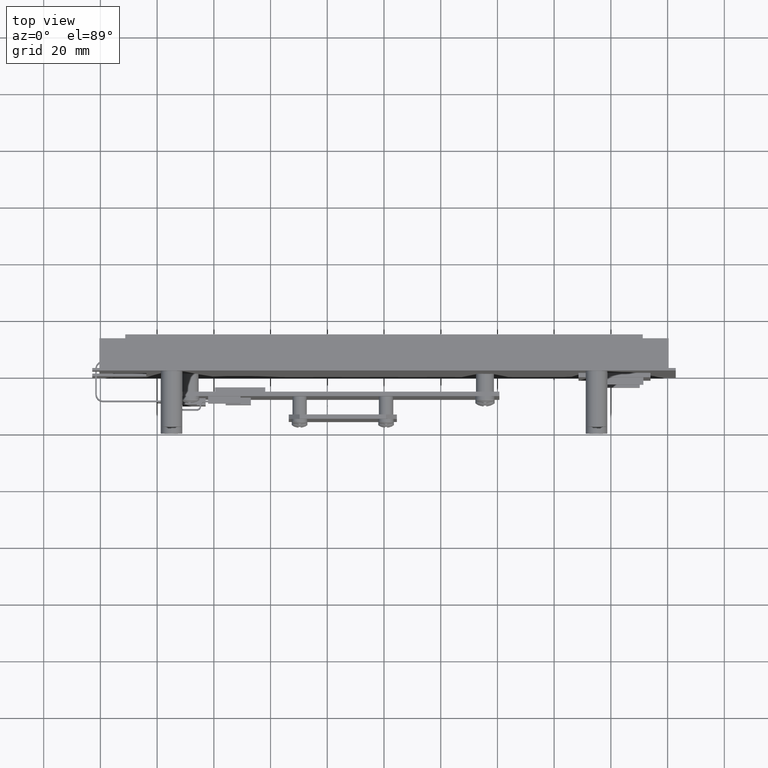
[diagram: clean part render]
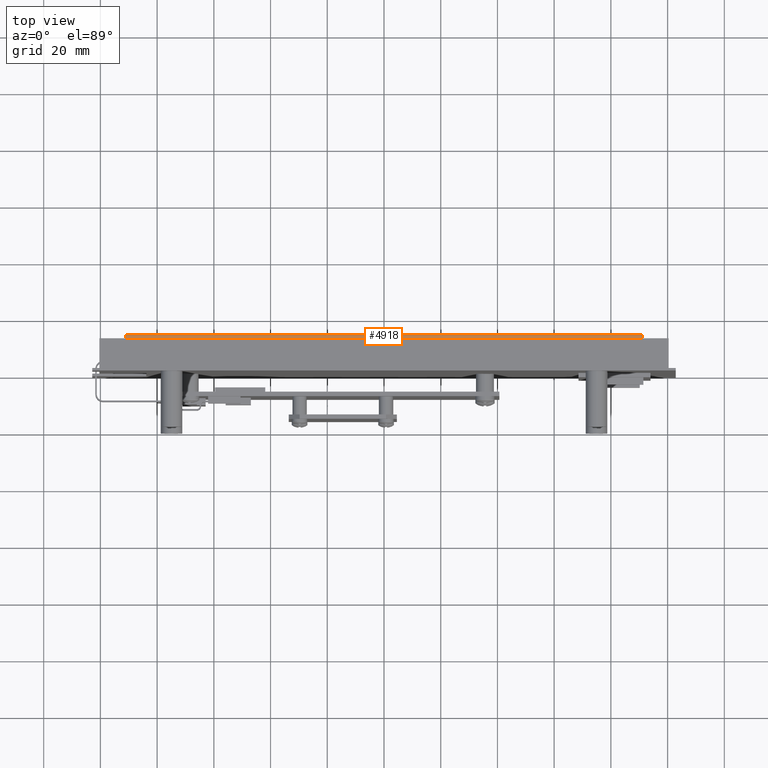
[diagram: same view with one face highlighted and labeled with its STEP entity id]
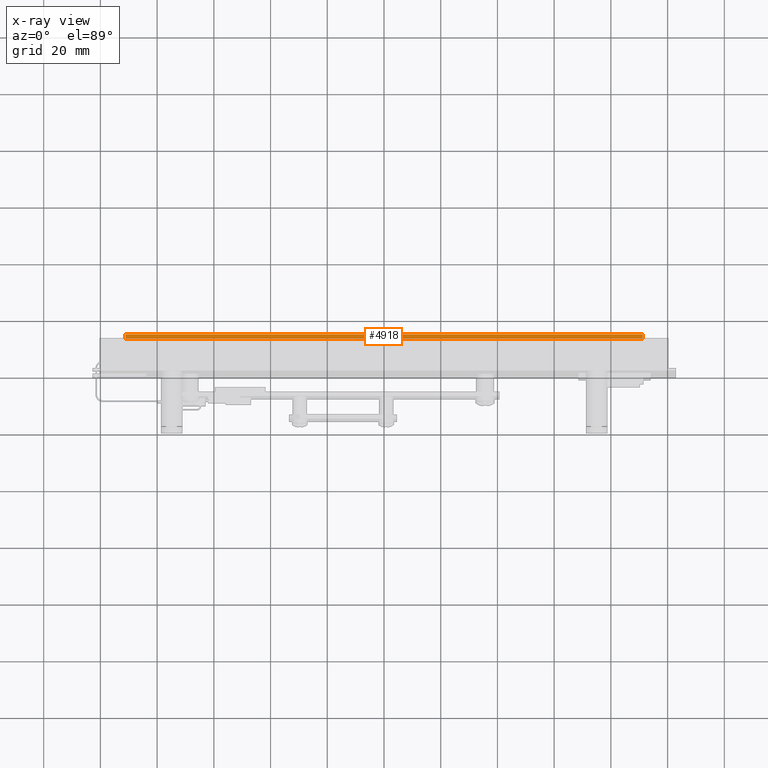
[diagram: x-ray of the same camera — body ghosted, the highlighted face saturated]
A machine part, top view. The second image highlights one B-rep face of the part: STEP entity #4918.
The next image is the same camera in x-ray: the body ghosted, the highlighted face saturated — about 0% of this face is hidden behind the body in this view.
In plain terms, the highlighted planar face has unit normal (0, 0, -1).
Its self-contained STEP definition (entity closure, byte-faithful):
#2536 = VECTOR ( 'NONE', #4020, 39.37007874015748100 ) ;
#2540 = LINE ( 'NONE', #4010, #2545 ) ;
#2542 = LINE ( 'NONE', #4018, #2536 ) ;
#2545 = VECTOR ( 'NONE', #4013, 39.37007874015748100 ) ;
#2578 = LINE ( 'NONE', #4052, #2581 ) ;
#2581 = VECTOR ( 'NONE', #4053, 39.37007874015748100 ) ;
#2582 = LINE ( 'NONE', #4056, #2585 ) ;
#2585 = VECTOR ( 'NONE', #4057, 39.37007874015748100 ) ;
#4010 = CARTESIAN_POINT ( 'NONE',  ( -3.592499999999999400, 0.05799999999999996800, 2.752499999999999100 ) ) ;
#4013 = DIRECTION ( 'NONE',  ( -0.0000000000000000000, -1.000000000000000000, -0.0000000000000000000 ) ) ;
#4018 = CARTESIAN_POINT ( 'NONE',  ( 3.592500000000000700, 0.05799999999999996800, 2.752499999999999100 ) ) ;
#4020 = DIRECTION ( 'NONE',  ( -0.0000000000000000000, -1.000000000000000000, -0.0000000000000000000 ) ) ;
#4052 = CARTESIAN_POINT ( 'NONE',  ( -3.592499999999999400, 0.05799999999999996800, 2.752499999999999100 ) ) ;
#4053 = DIRECTION ( 'NONE',  ( 1.000000000000000000, 0.0000000000000000000, 0.0000000000000000000 ) ) ;
#4056 = CARTESIAN_POINT ( 'NONE',  ( -3.592499999999999400, 0.0000000000000000000, 2.752499999999999100 ) ) ;
#4057 = DIRECTION ( 'NONE',  ( 1.000000000000000000, 0.0000000000000000000, 0.0000000000000000000 ) ) ;
#4918 = ADVANCED_FACE ( 'NONE', ( #7982 ), #14805, .F. ) ;
#5482 = VERTEX_POINT ( 'NONE', #20294 ) ;
#5489 = VERTEX_POINT ( 'NONE', #20299 ) ;
#5614 = VERTEX_POINT ( 'NONE', #20312 ) ;
#5664 = VERTEX_POINT ( 'NONE', #20319 ) ;
#7084 = ORIENTED_EDGE ( 'NONE', *, *, #13678, .T. ) ;
#7117 = ORIENTED_EDGE ( 'NONE', *, *, #13658, .F. ) ;
#7205 = ORIENTED_EDGE ( 'NONE', *, *, #13676, .F. ) ;
#7208 = ORIENTED_EDGE ( 'NONE', *, *, #13655, .T. ) ;
#7982 = FACE_OUTER_BOUND ( 'NONE', #13293, .T. ) ;
#8209 = AXIS2_PLACEMENT_3D ( 'NONE', #14797, #14807, #14808 ) ;
#13293 = EDGE_LOOP ( 'NONE', ( #7084, #7117, #7205, #7208 ) ) ;
#13655 = EDGE_CURVE ( 'NONE', #5614, #5664, #2540, .T. ) ;
#13658 = EDGE_CURVE ( 'NONE', #5482, #5489, #2542, .T. ) ;
#13676 = EDGE_CURVE ( 'NONE', #5614, #5482, #2578, .T. ) ;
#13678 = EDGE_CURVE ( 'NONE', #5664, #5489, #2582, .T. ) ;
#14797 = CARTESIAN_POINT ( 'NONE',  ( -3.592499999999999400, 0.05799999999999996800, 2.752499999999999100 ) ) ;
#14805 = PLANE ( 'NONE',  #8209 ) ;
#14807 = DIRECTION ( 'NONE',  ( 0.0000000000000000000, 0.0000000000000000000, -1.000000000000000000 ) ) ;
#14808 = DIRECTION ( 'NONE',  ( -1.000000000000000000, 0.0000000000000000000, -0.0000000000000000000 ) ) ;
#20294 = CARTESIAN_POINT ( 'NONE',  ( 3.592500000000000700, 0.05799999999999996800, 2.752499999999999100 ) ) ;
#20299 = CARTESIAN_POINT ( 'NONE',  ( 3.592500000000000700, 0.0000000000000000000, 2.752499999999999100 ) ) ;
#20312 = CARTESIAN_POINT ( 'NONE',  ( -3.592499999999999400, 0.05799999999999996800, 2.752499999999999100 ) ) ;
#20319 = CARTESIAN_POINT ( 'NONE',  ( -3.592499999999999400, 0.0000000000000000000, 2.752499999999999100 ) ) ;